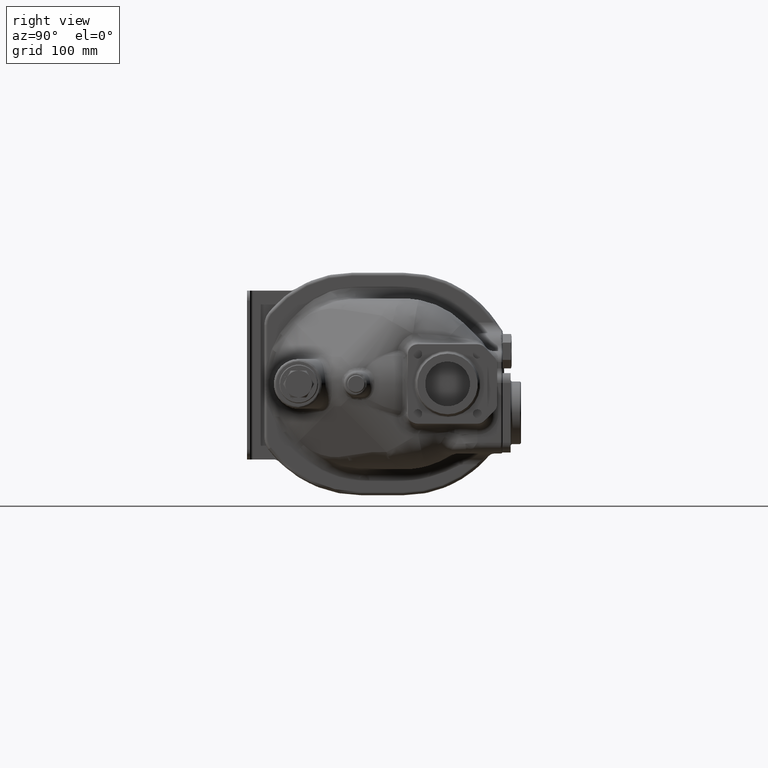
[diagram: clean part render]
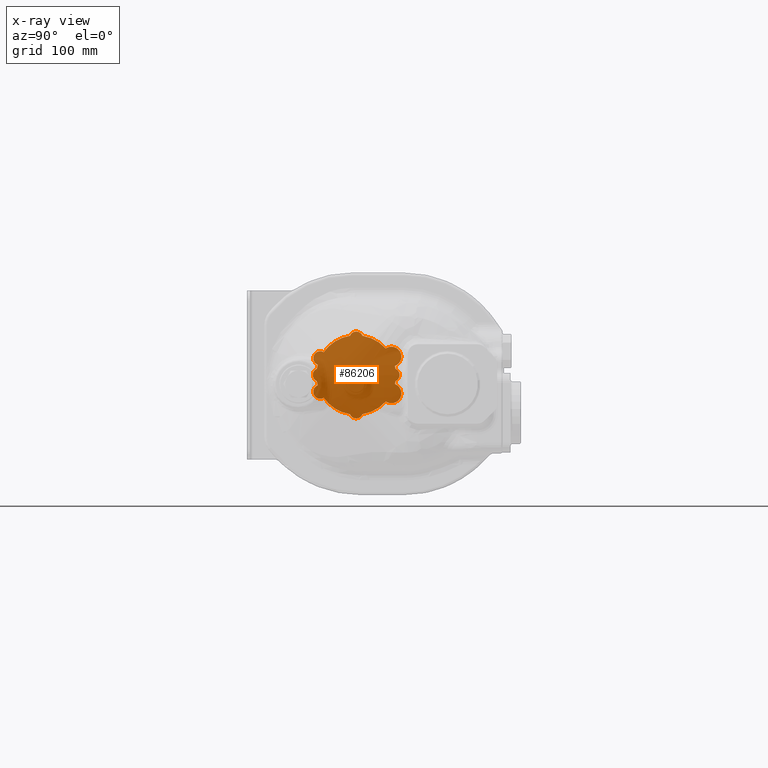
[diagram: x-ray — body ghosted, one internal face saturated and labeled with its STEP entity id]
A machine part, right view, then the same camera in x-ray: the body is ghosted and one INTERNAL B-rep face — a face not visible from any outside direction — is saturated and labeled: STEP entity #86206.
In plain terms, the highlighted planar face has unit normal (-1, 0, 0).
Its self-contained STEP definition (entity closure, byte-faithful):
#32915=CARTESIAN_POINT('',(-1.183E2,7.374768851853E1,1.690473046963E1));
#32916=DIRECTION('',(-1.E0,0.E0,0.E0));
#32917=DIRECTION('',(0.E0,-3.416953862921E-1,-9.398107591354E-1));
#32918=AXIS2_PLACEMENT_3D('',#32915,#32916,#32917);
#32924=CARTESIAN_POINT('',(-1.183E2,1.1E2,0.E0));
#32925=DIRECTION('',(1.E0,0.E0,0.E0));
#32926=DIRECTION('',(0.E0,9.738234945335E-1,-2.273055245580E-1));
#32927=AXIS2_PLACEMENT_3D('',#32924,#32925,#32926);
#32937=CARTESIAN_POINT('',(-1.183E2,1.47E2,0.E0));
#32938=DIRECTION('',(-1.E0,0.E0,0.E0));
#32939=DIRECTION('',(0.E0,3.712462462462E-1,9.285344498984E-1));
#32940=AXIS2_PLACEMENT_3D('',#32937,#32938,#32939);
#32955=CARTESIAN_POINT('',(-1.183E2,1.1E2,0.E0));
#32956=DIRECTION('',(1.E0,0.E0,0.E0));
#32957=DIRECTION('',(0.E0,9.876478040541E-1,1.566901884204E-1));
#32958=AXIS2_PLACEMENT_3D('',#32955,#32956,#32957);
#32968=CARTESIAN_POINT('',(-1.183E2,1.454804333271E2,1.846994452940E1));
#32969=DIRECTION('',(-1.E0,0.E0,0.E0));
#32970=DIRECTION('',(0.E0,0.E0,1.E0));
#32971=AXIS2_PLACEMENT_3D('',#32968,#32969,#32970);
#32977=CARTESIAN_POINT('',(-1.183E2,1.454804333271E2,1.846994452940E1));
#32978=DIRECTION('',(-1.E0,0.E0,0.E0));
#32979=DIRECTION('',(0.E0,-5.690033537156E-1,8.223352013993E-1));
#32980=AXIS2_PLACEMENT_3D('',#32977,#32978,#32979);
#32986=CARTESIAN_POINT('',(-1.183E2,1.1E2,0.E0));
#32987=DIRECTION('',(1.E0,0.E0,0.E0));
#32988=DIRECTION('',(0.E0,7.447599947493E-1,6.673324135849E-1));
#32989=AXIS2_PLACEMENT_3D('',#32986,#32987,#32988);
#33004=CARTESIAN_POINT('',(-1.183E2,1.1E2,3.7E1));
#33005=DIRECTION('',(-1.E0,0.E0,0.E0));
#33006=DIRECTION('',(0.E0,-9.285344498984E-1,3.712462462462E-1));
#33007=AXIS2_PLACEMENT_3D('',#33004,#33005,#33006);
#33022=CARTESIAN_POINT('',(-1.183E2,1.1E2,0.E0));
#33023=DIRECTION('',(1.E0,0.E0,0.E0));
#33024=DIRECTION('',(0.E0,-1.566901884203E-1,9.876478040541E-1));
#33025=AXIS2_PLACEMENT_3D('',#33022,#33023,#33024);
#33040=CARTESIAN_POINT('',(-1.183E2,7.374768851853E1,1.690473046963E1));
#33041=DIRECTION('',(-1.E0,0.E0,0.E0));
#33042=DIRECTION('',(0.E0,0.E0,1.E0));
#33043=AXIS2_PLACEMENT_3D('',#33040,#33041,#33042);
#33202=CARTESIAN_POINT('',(-1.183E2,1.1E2,0.E0));
#33203=DIRECTION('',(1.E0,0.E0,0.E0));
#33204=DIRECTION('',(0.E0,-9.661044796378E-1,2.581513788920E-1));
#33205=AXIS2_PLACEMENT_3D('',#33202,#33203,#33204);
#33215=CARTESIAN_POINT('',(-1.183E2,7.3E1,1.077304713974E-14));
#33216=DIRECTION('',(-1.E0,0.E0,0.E0));
#33217=DIRECTION('',(0.E0,-3.712462462462E-1,-9.285344498984E-1));
#33218=AXIS2_PLACEMENT_3D('',#33215,#33216,#33217);
#33233=CARTESIAN_POINT('',(-1.183E2,1.1E2,0.E0));
#33234=DIRECTION('',(1.E0,0.E0,0.E0));
#33235=DIRECTION('',(0.E0,-9.876478040541E-1,-1.566901884204E-1));
#33236=AXIS2_PLACEMENT_3D('',#33233,#33234,#33235);
#33246=CARTESIAN_POINT('',(-1.183E2,7.374768851853E1,-1.690473046963E1));
#33247=DIRECTION('',(-1.E0,0.E0,0.E0));
#33248=DIRECTION('',(0.E0,0.E0,-1.E0));
#33249=AXIS2_PLACEMENT_3D('',#33246,#33247,#33248);
#33255=CARTESIAN_POINT('',(-1.183E2,7.374768851853E1,-1.690473046963E1));
#33256=DIRECTION('',(-1.E0,0.E0,0.E0));
#33257=DIRECTION('',(0.E0,5.002992490235E-1,-8.658525633308E-1));
#33258=AXIS2_PLACEMENT_3D('',#33255,#33256,#33257);
#33264=CARTESIAN_POINT('',(-1.183E2,1.1E2,0.E0));
#33265=DIRECTION('',(1.E0,0.E0,0.E0));
#33266=DIRECTION('',(0.E0,-8.187554184575E-1,-5.741424603236E-1));
#33267=AXIS2_PLACEMENT_3D('',#33264,#33265,#33266);
#33282=CARTESIAN_POINT('',(-1.183E2,1.1E2,-3.7E1));
#33283=DIRECTION('',(-1.E0,0.E0,0.E0));
#33284=DIRECTION('',(0.E0,9.285344498984E-1,-3.712462462462E-1));
#33285=AXIS2_PLACEMENT_3D('',#33282,#33283,#33284);
#33300=CARTESIAN_POINT('',(-1.183E2,1.1E2,0.E0));
#33301=DIRECTION('',(1.E0,0.E0,0.E0));
#33302=DIRECTION('',(0.E0,1.566901884203E-1,-9.876478040541E-1));
#33303=AXIS2_PLACEMENT_3D('',#33300,#33301,#33302);
#33318=CARTESIAN_POINT('',(-1.183E2,1.454804333271E2,-1.846994452940E1));
#33319=DIRECTION('',(-1.E0,0.E0,0.E0));
#33320=DIRECTION('',(0.E0,0.E0,-1.E0));
#33321=AXIS2_PLACEMENT_3D('',#33318,#33319,#33320);
#33327=CARTESIAN_POINT('',(-1.183E2,1.454804333271E2,-1.846994452940E1));
#33328=DIRECTION('',(-1.E0,0.E0,0.E0));
#33329=DIRECTION('',(0.E0,3.472506454210E-1,9.377723547080E-1));
#33330=AXIS2_PLACEMENT_3D('',#33327,#33328,#33329);
#37323=CARTESIAN_POINT('',(-1.183E2,1.489529397813E2,-9.092220982321E0));
#37324=CARTESIAN_POINT('',(-1.183E2,1.495059121622E2,-6.267607536814E0));
#37325=VERTEX_POINT('',#37323);
#37326=VERTEX_POINT('',#37324);
#37327=CARTESIAN_POINT('',(-1.183E2,1.495059121622E2,6.267607536814E0));
#37328=CARTESIAN_POINT('',(-1.183E2,1.489529397813E2,9.092220982321E0));
#37329=VERTEX_POINT('',#37327);
#37330=VERTEX_POINT('',#37328);
#37331=CARTESIAN_POINT('',(-1.183E2,1.397903997900E2,2.669329654339E1));
#37332=CARTESIAN_POINT('',(-1.183E2,1.162676075368E2,3.950591216216E1));
#37333=VERTEX_POINT('',#37331);
#37334=VERTEX_POINT('',#37332);
#37335=CARTESIAN_POINT('',(-1.183E2,1.037323924632E2,3.950591216216E1));
#37336=CARTESIAN_POINT('',(-1.183E2,7.724978326170E1,2.296569841294E1));
#37337=VERTEX_POINT('',#37335);
#37338=VERTEX_POINT('',#37336);
#37339=CARTESIAN_POINT('',(-1.183E2,7.135582081449E1,1.032605515568E1));
#37340=CARTESIAN_POINT('',(-1.183E2,7.049408783784E1,6.267607536814E0));
#37341=VERTEX_POINT('',#37339);
#37342=VERTEX_POINT('',#37340);
#37343=CARTESIAN_POINT('',(-1.183E2,7.049408783784E1,-6.267607536814E0));
#37344=CARTESIAN_POINT('',(-1.183E2,7.135582081449E1,-1.032605515568E1));
#37345=VERTEX_POINT('',#37343);
#37346=VERTEX_POINT('',#37344);
#37347=CARTESIAN_POINT('',(-1.183E2,7.724978326170E1,-2.296569841294E1));
#37348=CARTESIAN_POINT('',(-1.183E2,1.037323924632E2,-3.950591216216E1));
#37349=VERTEX_POINT('',#37347);
#37350=VERTEX_POINT('',#37348);
#37351=CARTESIAN_POINT('',(-1.183E2,1.162676075368E2,-3.950591216216E1));
#37352=CARTESIAN_POINT('',(-1.183E2,1.397903997900E2,-2.669329654339E1));
#37353=VERTEX_POINT('',#37351);
#37354=VERTEX_POINT('',#37352);
#37355=CARTESIAN_POINT('',(-1.183E2,7.374768851853E1,2.390473046963E1));
#37356=VERTEX_POINT('',#37355);
#37357=CARTESIAN_POINT('',(-1.183E2,1.454804333271E2,2.846994452940E1));
#37358=VERTEX_POINT('',#37357);
#37359=CARTESIAN_POINT('',(-1.183E2,7.374768851853E1,-2.390473046963E1));
#37360=VERTEX_POINT('',#37359);
#37361=CARTESIAN_POINT('',(-1.183E2,1.454804333271E2,-2.846994452940E1));
#37362=VERTEX_POINT('',#37361);
#86160=CARTESIAN_POINT('',(-1.183E2,1.1E2,0.E0));
#86161=DIRECTION('',(-1.E0,0.E0,0.E0));
#86162=DIRECTION('',(0.E0,-1.E0,0.E0));
#86163=AXIS2_PLACEMENT_3D('',#86160,#86161,#86162);
#86164=PLANE('',#86163);
#86166=ORIENTED_EDGE('',*,*,#86165,.F.);
#86168=ORIENTED_EDGE('',*,*,#86167,.T.);
#86170=ORIENTED_EDGE('',*,*,#86169,.T.);
#86172=ORIENTED_EDGE('',*,*,#86171,.F.);
#86174=ORIENTED_EDGE('',*,*,#86173,.T.);
#86176=ORIENTED_EDGE('',*,*,#86175,.F.);
#86178=ORIENTED_EDGE('',*,*,#86177,.T.);
#86180=ORIENTED_EDGE('',*,*,#86179,.T.);
#86182=ORIENTED_EDGE('',*,*,#86181,.F.);
#86184=ORIENTED_EDGE('',*,*,#86183,.T.);
#86186=ORIENTED_EDGE('',*,*,#86185,.F.);
#86187=ORIENTED_EDGE('',*,*,#86146,.T.);
#86189=ORIENTED_EDGE('',*,*,#86188,.T.);
#86191=ORIENTED_EDGE('',*,*,#86190,.F.);
#86193=ORIENTED_EDGE('',*,*,#86192,.T.);
#86195=ORIENTED_EDGE('',*,*,#86194,.F.);
#86197=ORIENTED_EDGE('',*,*,#86196,.T.);
#86199=ORIENTED_EDGE('',*,*,#86198,.T.);
#86201=ORIENTED_EDGE('',*,*,#86200,.F.);
#86203=ORIENTED_EDGE('',*,*,#86202,.T.);
#86204=EDGE_LOOP('',(#86166,#86168,#86170,#86172,#86174,#86176,#86178,#86180,
#86182,#86184,#86186,#86187,#86189,#86191,#86193,#86195,#86197,#86199,#86201,
#86203));
#86205=FACE_OUTER_BOUND('',#86204,.F.);
#86206=ADVANCED_FACE('',(#86205),#86164,.F.);
#32919=CIRCLE('',#32918,7.E0);
#32928=CIRCLE('',#32927,4.E1);
#32941=CIRCLE('',#32940,6.75E0);
#32959=CIRCLE('',#32958,4.E1);
#32972=CIRCLE('',#32971,1.E1);
#32981=CIRCLE('',#32980,1.E1);
#32990=CIRCLE('',#32989,4.E1);
#33008=CIRCLE('',#33007,6.75E0);
#33026=CIRCLE('',#33025,4.E1);
#33044=CIRCLE('',#33043,7.E0);
#33206=CIRCLE('',#33205,4.E1);
#33219=CIRCLE('',#33218,6.75E0);
#33237=CIRCLE('',#33236,4.E1);
#33250=CIRCLE('',#33249,7.E0);
#33259=CIRCLE('',#33258,7.E0);
#33268=CIRCLE('',#33267,4.E1);
#33286=CIRCLE('',#33285,6.75E0);
#33304=CIRCLE('',#33303,4.E1);
#33322=CIRCLE('',#33321,1.E1);
#33331=CIRCLE('',#33330,1.E1);
#86146=EDGE_CURVE('',#37341,#37356,#32919,.T.);
#86165=EDGE_CURVE('',#37325,#37326,#32928,.T.);
#86167=EDGE_CURVE('',#37325,#37362,#33331,.T.);
#86169=EDGE_CURVE('',#37362,#37354,#33322,.T.);
#86171=EDGE_CURVE('',#37353,#37354,#33304,.T.);
#86173=EDGE_CURVE('',#37353,#37350,#33286,.T.);
#86175=EDGE_CURVE('',#37349,#37350,#33268,.T.);
#86177=EDGE_CURVE('',#37349,#37360,#33259,.T.);
#86179=EDGE_CURVE('',#37360,#37346,#33250,.T.);
#86181=EDGE_CURVE('',#37345,#37346,#33237,.T.);
#86183=EDGE_CURVE('',#37345,#37342,#33219,.T.);
#86185=EDGE_CURVE('',#37341,#37342,#33206,.T.);
#86188=EDGE_CURVE('',#37356,#37338,#33044,.T.);
#86190=EDGE_CURVE('',#37337,#37338,#33026,.T.);
#86192=EDGE_CURVE('',#37337,#37334,#33008,.T.);
#86194=EDGE_CURVE('',#37333,#37334,#32990,.T.);
#86196=EDGE_CURVE('',#37333,#37358,#32981,.T.);
#86198=EDGE_CURVE('',#37358,#37330,#32972,.T.);
#86200=EDGE_CURVE('',#37329,#37330,#32959,.T.);
#86202=EDGE_CURVE('',#37329,#37326,#32941,.T.);